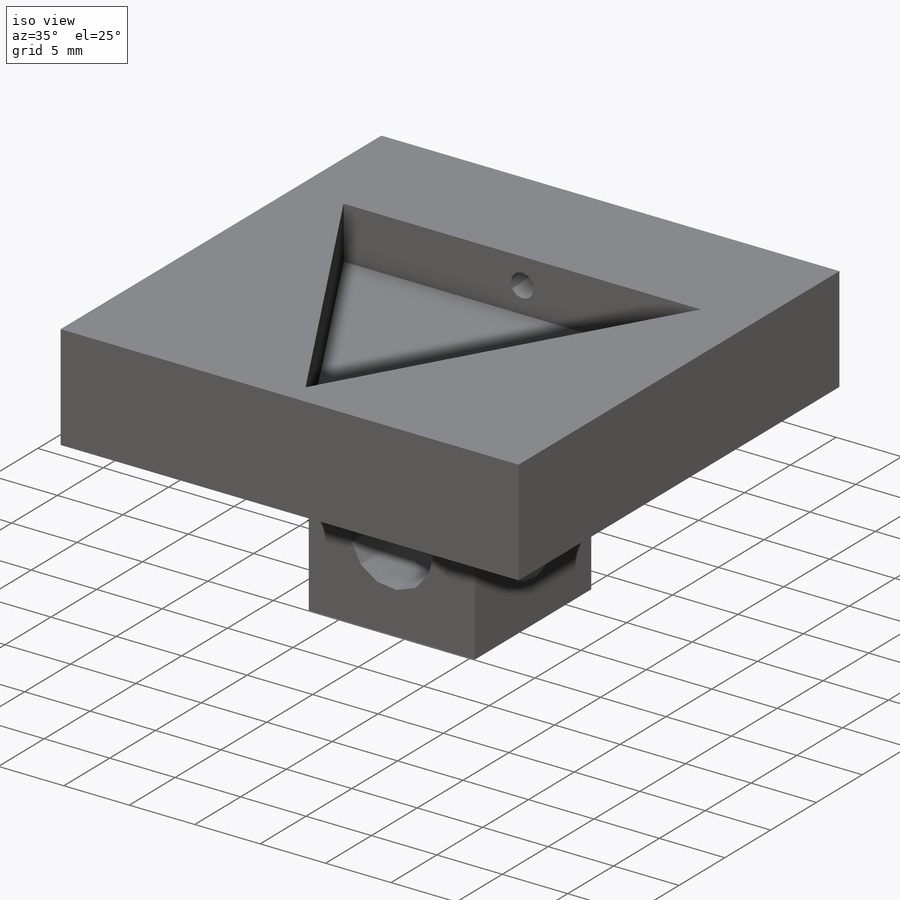
[diagram: iso view]
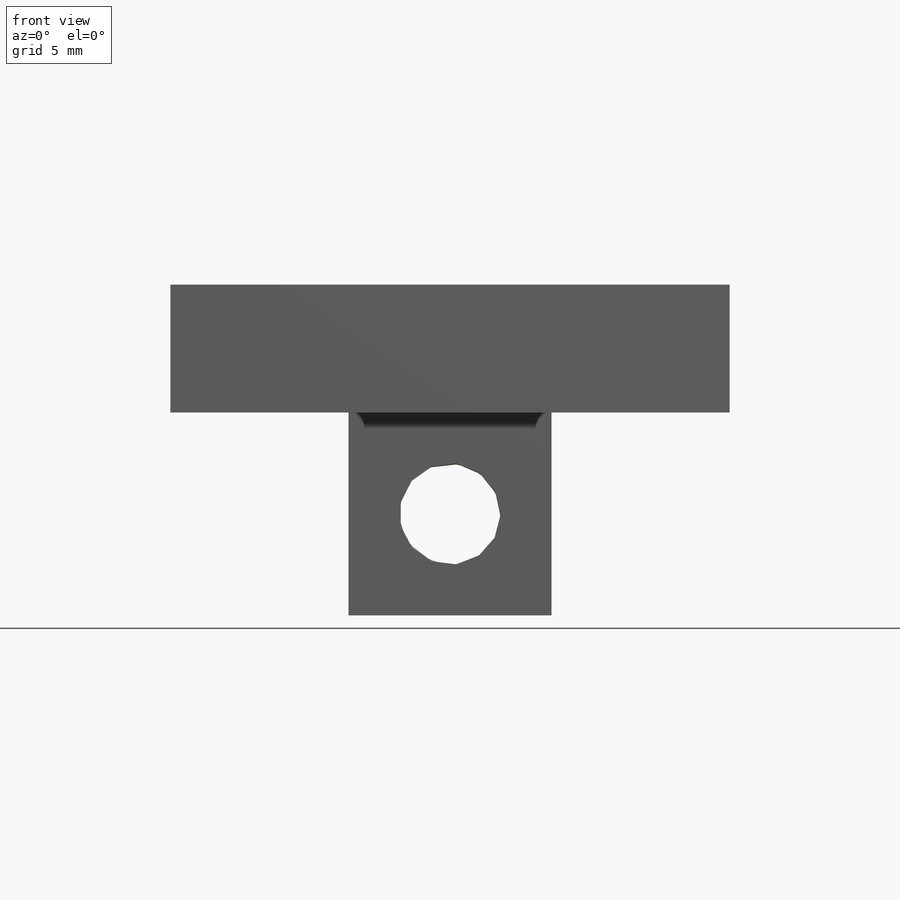
[diagram: front view]
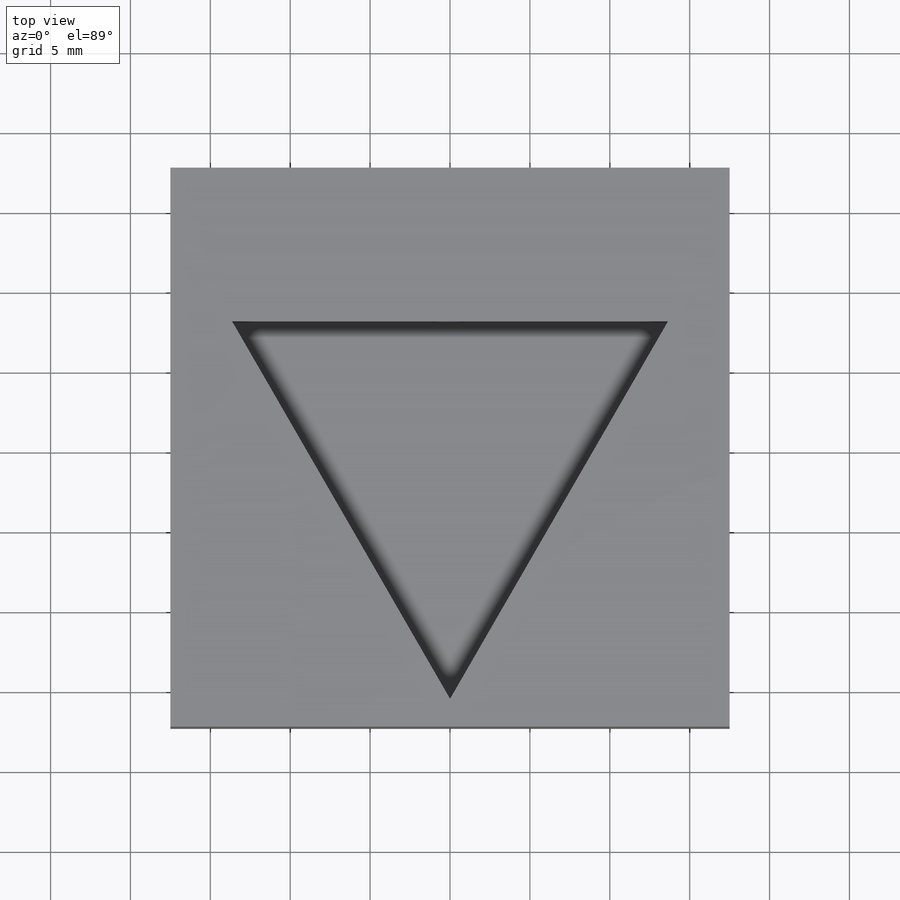
[diagram: top view]
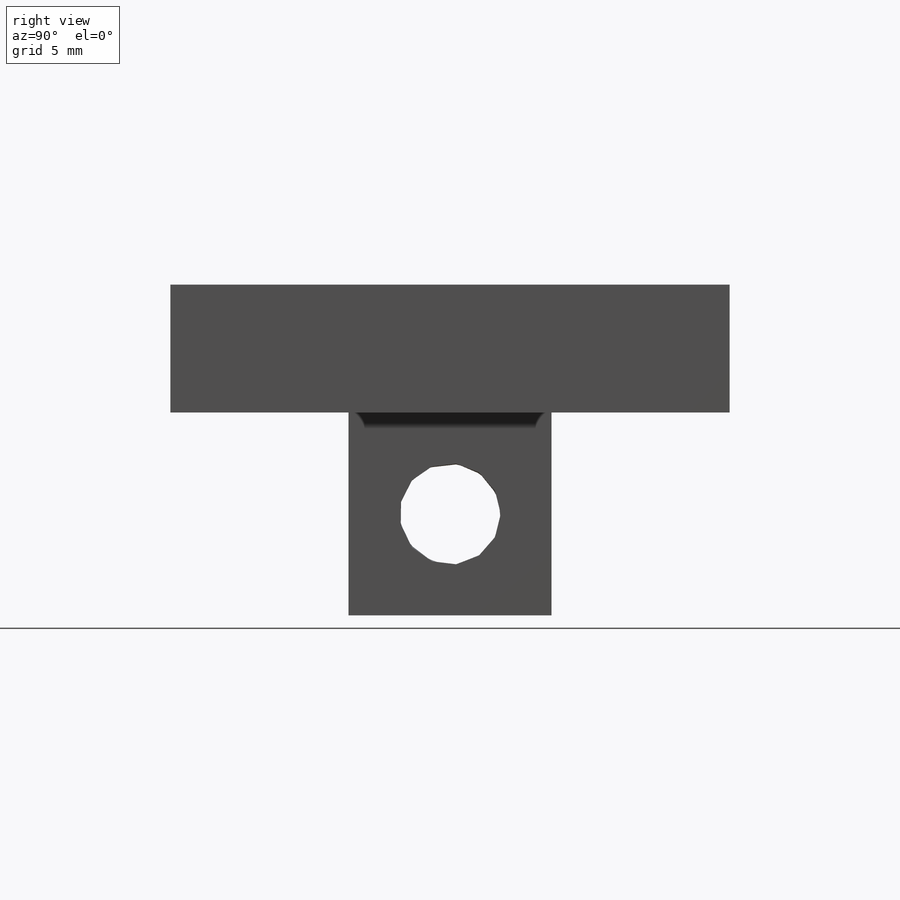
[diagram: right view]
SOLIDWORKS PART (.sldprt)
format: sldprt  version: not decoded by parser v0  size: 291,840 bytes
history: native  units: mm
features: sketch x14, hole x4, extrude x2, material x1, cut_extrude x1 (+14 scaffold rows collapsed)
feature tree (36):
  scaffold x14  (default folders/planes/origin — collapsed)
  material  "Material <not specified>"
  sketch  "Sketch1"  dims[D1=35.0mm D2=35.0mm]
  extrude  "Extrude1"  Depth=8mm
  sketch  "Sketch2"  dims[D1=~23.646029mm D2=17.5mm]
  cut_extrude  "Extrude2"  Depth=4mm
  sketch  "Sketch3"
  hole  "#2-56 Tapped Hole1"  Diameter=1.778mm Depth=9.61799mm
  sketch  "3DSketch1"  dims[D1=2.0mm]
  sketch  "Sketch5"  dims[hole-wizard template sketch: 59 standard entries collapsed; hole parameters kept: c18.Thread Major Dia.=1.778mm c18.Thru Tap Drill Depth=~9.61799mm]
  sketch  "Sketch6"  dims[D1=12.7mm D2=12.7mm]
  extrude  "Extrude3"  Depth=12.7mm
  sketch  "Sketch7"
  sketch  "Sketch8"
  hole  "1/4 (0.25) Diameter Hole1"  Diameter=6.35mm Depth=23.85mm
  sketch  "3DSketch2"  dims[D1=6.35mm]
  sketch  "Sketch9"  dims[hole-wizard template sketch: 60 standard entries collapsed; hole parameters kept: c18.Thru Hole Depth=23.85mm]
  hole  "1/4 (0.25) Diameter Hole2"  Diameter=6.35mm Depth=23.85mm
  sketch  "3DSketch3"  dims[D1=6.35mm]
  sketch  "Sketch10"  dims[hole-wizard template sketch: 60 standard entries collapsed; hole parameters kept: c18.Thru Hole Depth=23.85mm]
  hole  "#2-56 Tapped Hole2"  Diameter=1.778mm Depth=6.35mm
  sketch  "3DSketch5"  dims[c1.D1=6.35mm c1.D2=~14.199032mm c1.D3=~14.199032mm c2.D2=6.35mm]
  sketch  "Sketch14"  dims[hole-wizard template sketch: 59 standard entries collapsed; hole parameters kept: c18.Thread Major Dia.=1.778mm c18.Thru Tap Drill Depth=6.35mm]
decode coverage: 18 of 21 modeling features carry decoded parameters
note: ~ marks probable driven/reference dimensions
summary: Diameter pulled from absorbed wizard sketch
note: suppression state not decoded; provenance and decode notes live in map.json
